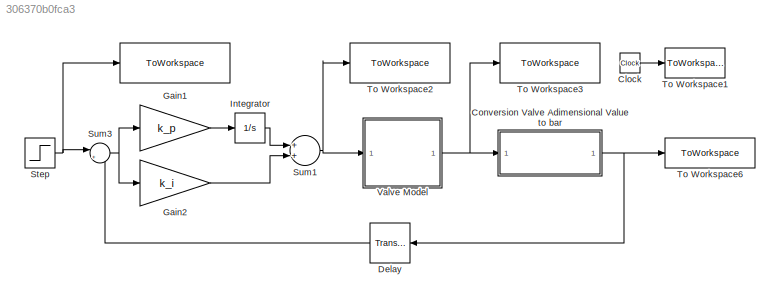
MODEL slx_306370b0fca3
KIND model
CONFIG AbsTol = auto
CONFIG EnableMultiTasking = off
CONFIG FixedStep = SAMPLE_TIME
CONFIG MaxStep = auto
CONFIG MinStep = auto
CONFIG RelTol = 1e-12
CONFIG SampleTimeConstraint = Unconstrained
CONFIG Solver = FixedStepAuto
CONFIG SolverName = FixedStepAuto
CONFIG StartTime = 0.0
CONFIG StopTime = T_sim
BLOCK [ToWorkspace]  
  FixptAsFi = on
  MaxDataPoints = inf
  Ports = [1]
  SampleTime = -1
  Save2DSignal = 3-D array (concatenate along third dimension)
  VariableName = reference_signal
BLOCK [Clock] Clock
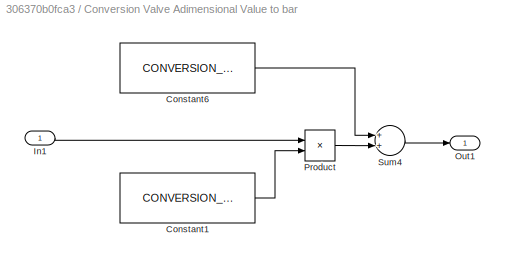
BLOCK [SubSystem] Conversion Valve Adimensional Value to bar 
  Ports = [1, 1]
  RequestExecContextInheritance = off
BLOCK [Constant] Conversion Valve Adimensional Value to bar /Constant1
  Value = CONVERSION_COSTANT_2
BLOCK [Constant] Conversion Valve Adimensional Value to bar /Constant6
  Value = CONVERSION_COSTANT_1
BLOCK [Inport] Conversion Valve Adimensional Value to bar /In1
  IconDisplay = Port number
BLOCK [Outport] Conversion Valve Adimensional Value to bar /Out1
  IconDisplay = Port number
BLOCK [Product] Conversion Valve Adimensional Value to bar /Product
  InputSameDT = off
  OutDataTypeStr = Inherit: Inherit via internal rule
  Ports = [2, 1]
  RndMeth = Floor
  SaturateOnIntegerOverflow = off
BLOCK [Sum] Conversion Valve Adimensional Value to bar /Sum4
  InputSameDT = off
  OutDataTypeStr = Inherit: Inherit via internal rule
  Ports = [2, 1]
  SaturateOnIntegerOverflow = off
BLOCK [TransportDelay] Delay
  BufferSize = 21504
  DelayTime = Time_Delay
  Ports = [1, 1]
BLOCK [Gain] Gain1
  Gain = k_p
  OutDataTypeStr = Inherit: Inherit via internal rule
  ParamDataTypeStr = Inherit: Inherit via internal rule
  SaturateOnIntegerOverflow = off
BLOCK [Gain] Gain2
  Gain = k_i
  OutDataTypeStr = Inherit: Inherit via internal rule
  ParamDataTypeStr = Inherit: Inherit via internal rule
  SaturateOnIntegerOverflow = off
BLOCK [Integrator] Integrator
  InitialCondition = CONTROLLER_INITIAL_CONDITION
  Ports = [1, 1]
BLOCK [Step] Step
  After = Final_Step_Value
  Before = Initial_Step_Value
  SampleTime = 0
  Time = Step_Time
BLOCK [Sum] Sum1
  InputSameDT = off
  OutDataTypeStr = Inherit: Inherit via internal rule
  Ports = [2, 1]
  SaturateOnIntegerOverflow = off
BLOCK [Sum] Sum3
  IconShape = round
  InputSameDT = off
  Inputs = |+-
  OutDataTypeStr = Inherit: Inherit via internal rule
  Ports = [2, 1]
  SaturateOnIntegerOverflow = off
BLOCK [ToWorkspace] To Workspace1
  FixptAsFi = on
  MaxDataPoints = inf
  Ports = [1]
  SampleTime = -1
  Save2DSignal = 3-D array (concatenate along third dimension)
  VariableName = time
BLOCK [ToWorkspace] To Workspace2
  FixptAsFi = on
  MaxDataPoints = inf
  Ports = [1]
  SampleTime = -1
  Save2DSignal = 3-D array (concatenate along third dimension)
  VariableName = controller_output
BLOCK [ToWorkspace] To Workspace3
  FixptAsFi = on
  MaxDataPoints = inf
  Ports = [1]
  SampleTime = -1
  Save2DSignal = 3-D array (concatenate along third dimension)
  VariableName = valve_output
BLOCK [ToWorkspace] To Workspace6
  FixptAsFi = on
  MaxDataPoints = inf
  Ports = [1]
  SampleTime = -1
  Save2DSignal = 3-D array (concatenate along third dimension)
  VariableName = model_output
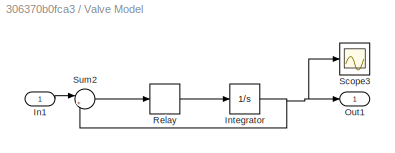
BLOCK [SubSystem] Valve Model
  Ports = [1, 1]
  RequestExecContextInheritance = off
BLOCK [Inport] Valve Model/In1
  IconDisplay = Port number
BLOCK [Integrator] Valve Model/Integrator
  InitialCondition = MODEL_INITIAL_CONDITION
  Ports = [1, 1]
BLOCK [Outport] Valve Model/Out1
  IconDisplay = Port number
BLOCK [Relay] Valve Model/Relay
  InputProcessing = Elements as channels (sample based)
  OffOutputValue = -OUTPUT_WHEN_ON
  OffSwitchValue = -SWITCH_POINT
  OnOutputValue = OUTPUT_WHEN_ON
  OnSwitchValue = SWITCH_POINT
BLOCK [Scope] Valve Model/Scope3
  Floating = off
  NumInputPorts = 1
  Ports = [1]
  ScopeSpecificationString = Simulink.scopes.TimeScopeBlockCfg('CurrentConfiguration', extmgr.ConfigurationSet(extmgr.Configuration('Core','General UI',true),extmgr.Configuration('Core','Source UI',true),extmgr.Configuration('Sources','WiredSimulink',true,'DataLoggingVariableName','ScopeData2'),extmgr.Configuration('Visuals','Time Domain',true,'SerializedDisplays',{struct('MinYLimReal','-989.48078','MaxYLimReal','8905.32705',...<+1431ch>
BLOCK [Sum] Valve Model/Sum2
  IconShape = round
  InputSameDT = off
  Inputs = |+-
  OutDataTypeStr = Inherit: Inherit via internal rule
  Ports = [2, 1]
  SaturateOnIntegerOverflow = off
LINE Clock:1 -> To Workspace1:1
LINE Conversion Valve Adimensional Value to bar /Constant1:1 -> Conversion Valve Adimensional Value to bar /Product:2
LINE Conversion Valve Adimensional Value to bar /Constant6:1 -> Conversion Valve Adimensional Value to bar /Sum4:1
LINE Conversion Valve Adimensional Value to bar /In1:1 -> Conversion Valve Adimensional Value to bar /Product:1
LINE Conversion Valve Adimensional Value to bar /Product:1 -> Conversion Valve Adimensional Value to bar /Sum4:2
LINE Conversion Valve Adimensional Value to bar /Sum4:1 -> Conversion Valve Adimensional Value to bar /Out1:1
NET Conversion Valve Adimensional Value to bar :1 -> Delay:1, To Workspace6:1
LINE Delay:1 -> Sum3:2
LINE Gain1:1 -> Integrator:1
LINE Gain2:1 -> Sum1:2
LINE Integrator:1 -> Sum1:1
NET Step:1 ->  :1, Sum3:1
NET Sum1:1 -> To Workspace2:1, Valve Model:1
NET Sum3:1 -> Gain1:1, Gain2:1
LINE Valve Model/In1:1 -> Valve Model/Sum2:1
NET Valve Model/Integrator:1 -> Valve Model/Out1:1, Valve Model/Scope3:1, Valve Model/Sum2:2
LINE Valve Model/Relay:1 -> Valve Model/Integrator:1
LINE Valve Model/Sum2:1 -> Valve Model/Relay:1
NET Valve Model:1 -> Conversion Valve Adimensional Value to bar :1, To Workspace3:1
note: NET lines group one-source signal fan-out (src -> all destinations, sorted); 1:1 wires keep LINE
